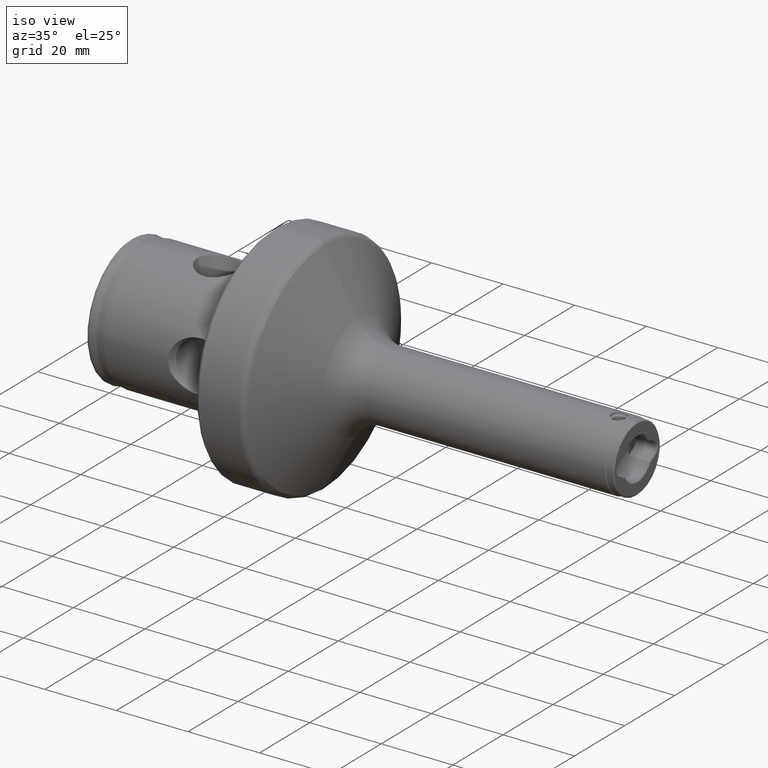
[diagram: clean part render]
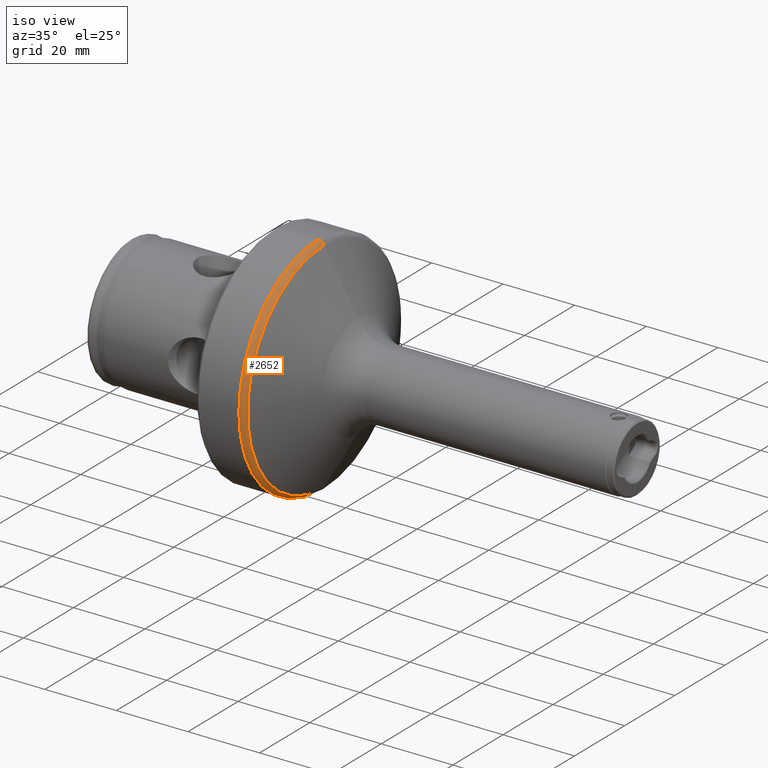
[diagram: same view with one face highlighted and labeled with its STEP entity id]
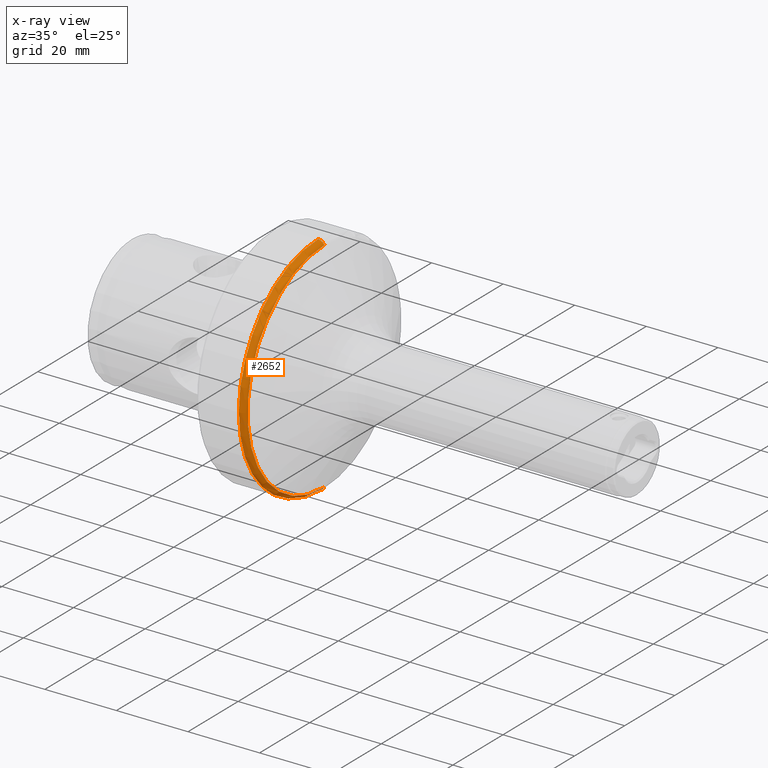
[diagram: x-ray of the same camera — body ghosted, the highlighted face saturated]
A machine part, iso view. The second image highlights one B-rep face of the part: STEP entity #2652.
The next image is the same camera in x-ray: the body ghosted, the highlighted face saturated — about 0% of this face is hidden behind the body in this view.
In plain terms, the highlighted toroidal blend (fillet) surface has major radius 29.635 mm and minor (blend) radius 2 mm.
Its self-contained STEP definition (entity closure, byte-faithful):
#5 = DIRECTION ( 'NONE',  ( 1.000000000000000000, 0.0000000000000000000, 0.0000000000000000000 ) ) ;
#169 = AXIS2_PLACEMENT_3D ( 'NONE', #1758, #3886, #2060 ) ;
#320 = FACE_OUTER_BOUND ( 'NONE', #2511, .T. ) ;
#329 = CARTESIAN_POINT ( 'NONE',  ( 52.34529946162074100, 0.0000000000000000000, -29.63500000000000200 ) ) ;
#507 = AXIS2_PLACEMENT_3D ( 'NONE', #329, #2477, #650 ) ;
#555 = EDGE_CURVE ( 'NONE', #3663, #572, #3502, .T. ) ;
#572 = VERTEX_POINT ( 'NONE', #3284 ) ;
#631 = CARTESIAN_POINT ( 'NONE',  ( 52.34529946162074100, 0.0000000000000000000, 0.0000000000000000000 ) ) ;
#650 = DIRECTION ( 'NONE',  ( 0.0000000000000000000, 0.0000000000000000000, -1.000000000000000000 ) ) ;
#678 = ORIENTED_EDGE ( 'NONE', *, *, #933, .T. ) ;
#717 = ORIENTED_EDGE ( 'NONE', *, *, #2980, .F. ) ;
#737 = VERTEX_POINT ( 'NONE', #2434 ) ;
#914 = CARTESIAN_POINT ( 'NONE',  ( 52.34529946162074100, 3.629240789273181900E-015, 29.63500000000000200 ) ) ;
#930 = DIRECTION ( 'NONE',  ( 0.0000000000000000000, 0.0000000000000000000, -1.000000000000000000 ) ) ;
#933 = EDGE_CURVE ( 'NONE', #3663, #2114, #1837, .T. ) ;
#951 = EDGE_CURVE ( 'NONE', #737, #2114, #3368, .T. ) ;
#1044 = DIRECTION ( 'NONE',  ( 0.0000000000000000000, 1.000000000000000000, -1.224646799147353200E-016 ) ) ;
#1114 = AXIS2_PLACEMENT_3D ( 'NONE', #3090, #1248, #3394 ) ;
#1180 = CIRCLE ( 'NONE', #3865, 2.000000000000001800 ) ;
#1248 = DIRECTION ( 'NONE',  ( 1.000000000000000000, 0.0000000000000000000, 0.0000000000000000000 ) ) ;
#1758 = CARTESIAN_POINT ( 'NONE',  ( 52.34529946162074100, 0.0000000000000000000, 0.0000000000000000000 ) ) ;
#1837 = CIRCLE ( 'NONE', #507, 2.000000000000001800 ) ;
#1864 = CARTESIAN_POINT ( 'NONE',  ( 54.07735026918962300, 3.751705469187915400E-015, -30.63499999999998700 ) ) ;
#1952 = TOROIDAL_SURFACE ( 'NONE', #3337, 29.63500000000000200, 2.000000000000000000 ) ;
#2034 = CARTESIAN_POINT ( 'NONE',  ( 52.34529946162074100, 3.874170149102652900E-015, -31.63500000000000500 ) ) ;
#2060 = DIRECTION ( 'NONE',  ( 0.0000000000000000000, 0.0000000000000000000, -1.000000000000000000 ) ) ;
#2114 = VERTEX_POINT ( 'NONE', #1864 ) ;
#2434 = CARTESIAN_POINT ( 'NONE',  ( 54.07735026918962300, 0.0000000000000000000, 30.63499999999998700 ) ) ;
#2477 = DIRECTION ( 'NONE',  ( 0.0000000000000000000, -1.000000000000000000, 0.0000000000000000000 ) ) ;
#2511 = EDGE_LOOP ( 'NONE', ( #717, #2665, #678, #3393 ) ) ;
#2652 = ADVANCED_FACE ( 'NONE', ( #320 ), #1952, .T. ) ;
#2665 = ORIENTED_EDGE ( 'NONE', *, *, #555, .F. ) ;
#2980 = EDGE_CURVE ( 'NONE', #572, #737, #1180, .T. ) ;
#3090 = CARTESIAN_POINT ( 'NONE',  ( 54.07735026918962300, 0.0000000000000000000, 0.0000000000000000000 ) ) ;
#3194 = DIRECTION ( 'NONE',  ( 0.0000000000000000000, 1.224646799147353500E-016, 1.000000000000000000 ) ) ;
#3284 = CARTESIAN_POINT ( 'NONE',  ( 52.34529946162074100, 0.0000000000000000000, 31.63500000000000500 ) ) ;
#3337 = AXIS2_PLACEMENT_3D ( 'NONE', #631, #5, #930 ) ;
#3368 = CIRCLE ( 'NONE', #1114, 30.63499999999998700 ) ;
#3393 = ORIENTED_EDGE ( 'NONE', *, *, #951, .F. ) ;
#3394 = DIRECTION ( 'NONE',  ( 0.0000000000000000000, 0.0000000000000000000, -1.000000000000000000 ) ) ;
#3502 = CIRCLE ( 'NONE', #169, 31.63500000000000500 ) ;
#3663 = VERTEX_POINT ( 'NONE', #2034 ) ;
#3865 = AXIS2_PLACEMENT_3D ( 'NONE', #914, #1044, #3194 ) ;
#3886 = DIRECTION ( 'NONE',  ( -1.000000000000000000, -0.0000000000000000000, -0.0000000000000000000 ) ) ;